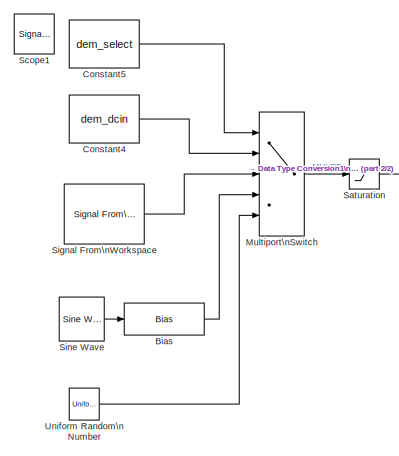
[diagram: root canvas - part 1/2, top left region]
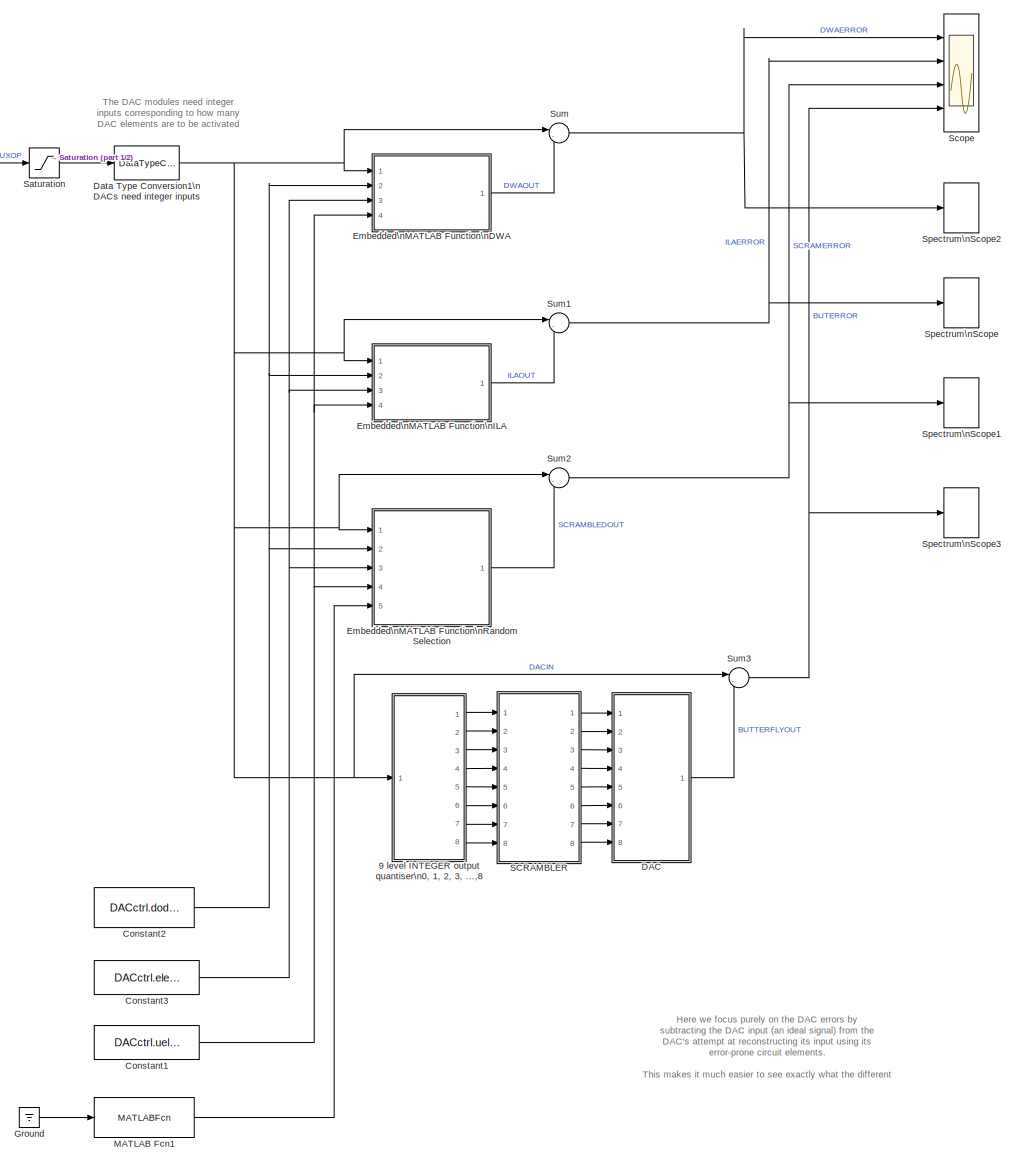
[diagram: root canvas - part 2/2, most of the canvas]
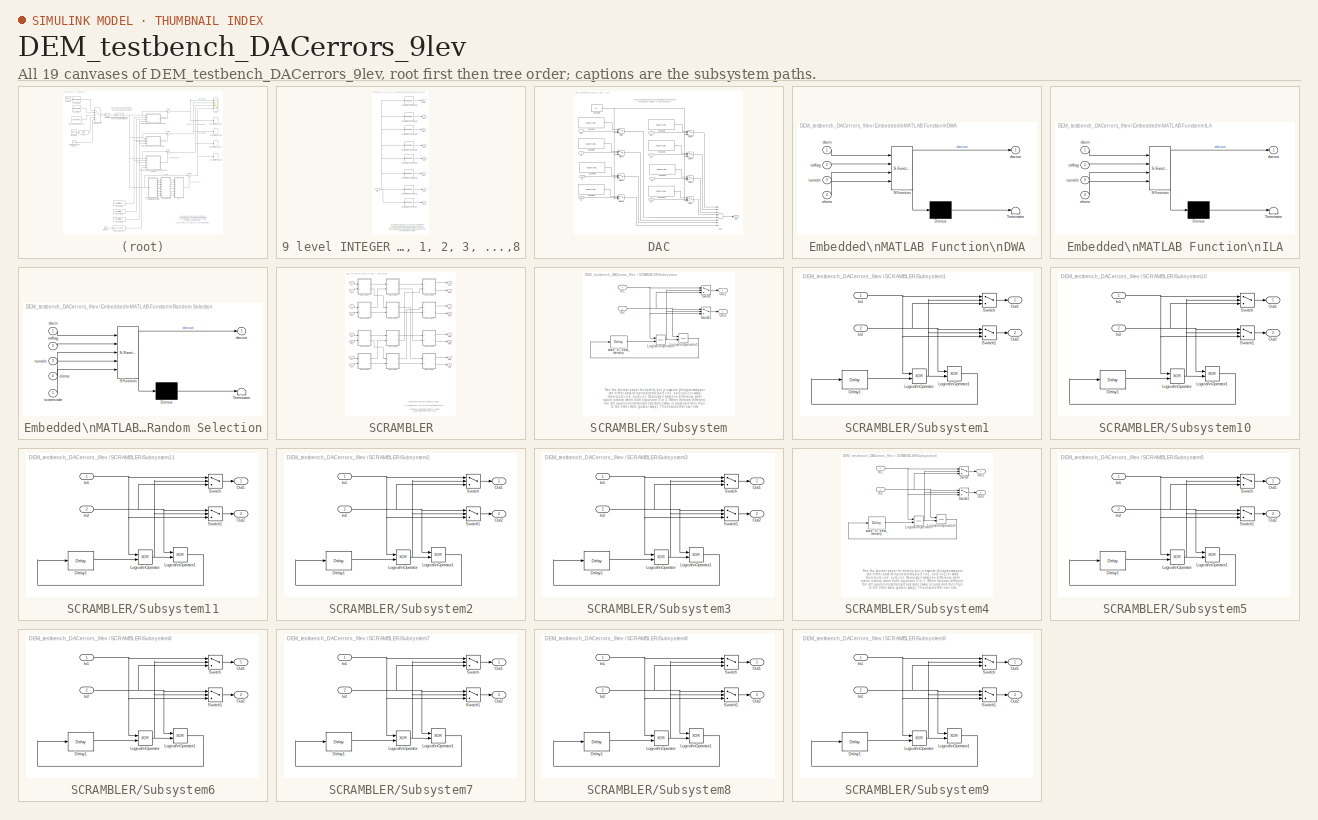
[diagram: thumbnail index - all 19 canvases of the model, root first then tree order]
MODEL DEM_testbench_DACerrors_9lev
KIND model
BLOCK [SubSystem] 9 level INTEGER  output quantiser\n0, 1, 2, 3, ...,8
  FunctionWithSeparateData = off
  MaskHideContents = off
  MinAlgLoopOccurrences = off
  Opaque = off
  Ports = [1, 8]
  PropExecContextOutsideSubsystem = off
  RTWSystemCode = Auto
  RequestExecContextInheritance = off
  SID = 197
BLOCK [Reference] 9 level INTEGER  output quantiser\n0, 1, 2, 3, ...,8/Compare\nTo Constant  REF=simulink/Logic and Bit\nOperations/Compare\nTo Constant
  FunctionWithSeparateData = off
  LogicOutDataTypeMode = uint8
  Ports = [1, 1]
  RTWMemSecDataConstants = Inherit from model
  RTWMemSecDataInternal = Inherit from model
  RTWMemSecDataParameters = Inherit from model
  RTWMemSecFuncExecute = Inherit from model
  RTWMemSecFuncInitTerm = Inherit from model
  SID = 199
  ShowPortLabels = FromPortIcon
  SourceBlock = simulink/Logic and Bit\nOperations/Compare\nTo Constant
  SourceType = Compare To Constant
  SystemSampleTime = -1
  ZeroCross = on
  const = 1
  relop = >=
BLOCK [Reference] 9 level INTEGER  output quantiser\n0, 1, 2, 3, ...,8/Compare\nTo Constant1  REF=simulink/Logic and Bit\nOperations/Compare\nTo Constant
  FunctionWithSeparateData = off
  LogicOutDataTypeMode = uint8
  Ports = [1, 1]
  RTWMemSecDataConstants = Inherit from model
  RTWMemSecDataInternal = Inherit from model
  RTWMemSecDataParameters = Inherit from model
  RTWMemSecFuncExecute = Inherit from model
  RTWMemSecFuncInitTerm = Inherit from model
  SID = 200
  ShowPortLabels = FromPortIcon
  SourceBlock = simulink/Logic and Bit\nOperations/Compare\nTo Constant
  SourceType = Compare To Constant
  SystemSampleTime = -1
  ZeroCross = on
  const = 2
  relop = >=
BLOCK [Reference] 9 level INTEGER  output quantiser\n0, 1, 2, 3, ...,8/Compare\nTo Constant2  REF=simulink/Logic and Bit\nOperations/Compare\nTo Constant
  FunctionWithSeparateData = off
  LogicOutDataTypeMode = uint8
  Ports = [1, 1]
  RTWMemSecDataConstants = Inherit from model
  RTWMemSecDataInternal = Inherit from model
  RTWMemSecDataParameters = Inherit from model
  RTWMemSecFuncExecute = Inherit from model
  RTWMemSecFuncInitTerm = Inherit from model
  SID = 201
  ShowPortLabels = FromPortIcon
  SourceBlock = simulink/Logic and Bit\nOperations/Compare\nTo Constant
  SourceType = Compare To Constant
  SystemSampleTime = -1
  ZeroCross = on
  const = 3
  relop = >=
BLOCK [Reference] 9 level INTEGER  output quantiser\n0, 1, 2, 3, ...,8/Compare\nTo Constant3  REF=simulink/Logic and Bit\nOperations/Compare\nTo Constant
  FunctionWithSeparateData = off
  LogicOutDataTypeMode = uint8
  Ports = [1, 1]
  RTWMemSecDataConstants = Inherit from model
  RTWMemSecDataInternal = Inherit from model
  RTWMemSecDataParameters = Inherit from model
  RTWMemSecFuncExecute = Inherit from model
  RTWMemSecFuncInitTerm = Inherit from model
  SID = 293
  ShowPortLabels = FromPortIcon
  SourceBlock = simulink/Logic and Bit\nOperations/Compare\nTo Constant
  SourceType = Compare To Constant
  SystemSampleTime = -1
  ZeroCross = on
  const = 4
  relop = >=
BLOCK [Reference] 9 level INTEGER  output quantiser\n0, 1, 2, 3, ...,8/Compare\nTo Constant4  REF=simulink/Logic and Bit\nOperations/Compare\nTo Constant
  FunctionWithSeparateData = off
  LogicOutDataTypeMode = uint8
  Ports = [1, 1]
  RTWMemSecDataConstants = Inherit from model
  RTWMemSecDataInternal = Inherit from model
  RTWMemSecDataParameters = Inherit from model
  RTWMemSecFuncExecute = Inherit from model
  RTWMemSecFuncInitTerm = Inherit from model
  SID = 294
  ShowPortLabels = FromPortIcon
  SourceBlock = simulink/Logic and Bit\nOperations/Compare\nTo Constant
  SourceType = Compare To Constant
  SystemSampleTime = -1
  ZeroCross = on
  const = 5
  relop = >=
BLOCK [Reference] 9 level INTEGER  output quantiser\n0, 1, 2, 3, ...,8/Compare\nTo Constant5  REF=simulink/Logic and Bit\nOperations/Compare\nTo Constant
  FunctionWithSeparateData = off
  LogicOutDataTypeMode = uint8
  Ports = [1, 1]
  RTWMemSecDataConstants = Inherit from model
  RTWMemSecDataInternal = Inherit from model
  RTWMemSecDataParameters = Inherit from model
  RTWMemSecFuncExecute = Inherit from model
  RTWMemSecFuncInitTerm = Inherit from model
  SID = 295
  ShowPortLabels = FromPortIcon
  SourceBlock = simulink/Logic and Bit\nOperations/Compare\nTo Constant
  SourceType = Compare To Constant
  SystemSampleTime = -1
  ZeroCross = on
  const = 6
  relop = >=
BLOCK [Reference] 9 level INTEGER  output quantiser\n0, 1, 2, 3, ...,8/Compare\nTo Constant6  REF=simulink/Logic and Bit\nOperations/Compare\nTo Constant
  FunctionWithSeparateData = off
  LogicOutDataTypeMode = uint8
  Ports = [1, 1]
  RTWMemSecDataConstants = Inherit from model
  RTWMemSecDataInternal = Inherit from model
  RTWMemSecDataParameters = Inherit from model
  RTWMemSecFuncExecute = Inherit from model
  RTWMemSecFuncInitTerm = Inherit from model
  SID = 299
  ShowPortLabels = FromPortIcon
  SourceBlock = simulink/Logic and Bit\nOperations/Compare\nTo Constant
  SourceType = Compare To Constant
  SystemSampleTime = -1
  ZeroCross = on
  const = 7
  relop = >=
BLOCK [Reference] 9 level INTEGER  output quantiser\n0, 1, 2, 3, ...,8/Compare\nTo Constant7  REF=simulink/Logic and Bit\nOperations/Compare\nTo Constant
  FunctionWithSeparateData = off
  LogicOutDataTypeMode = uint8
  Ports = [1, 1]
  RTWMemSecDataConstants = Inherit from model
  RTWMemSecDataInternal = Inherit from model
  RTWMemSecDataParameters = Inherit from model
  RTWMemSecFuncExecute = Inherit from model
  RTWMemSecFuncInitTerm = Inherit from model
  SID = 300
  ShowPortLabels = FromPortIcon
  SourceBlock = simulink/Logic and Bit\nOperations/Compare\nTo Constant
  SourceType = Compare To Constant
  SystemSampleTime = -1
  ZeroCross = on
  const = 8
  relop = >=
BLOCK [Inport] 9 level INTEGER  output quantiser\n0, 1, 2, 3, ...,8/In1
  IconDisplay = Port number
  SID = 198
BLOCK [Outport] 9 level INTEGER  output quantiser\n0, 1, 2, 3, ...,8/Out1
  IconDisplay = Port number
  SID = 202
BLOCK [Outport] 9 level INTEGER  output quantiser\n0, 1, 2, 3, ...,8/Out2
  IconDisplay = Port number
  Port = 2
  SID = 203
BLOCK [Outport] 9 level INTEGER  output quantiser\n0, 1, 2, 3, ...,8/Out3
  IconDisplay = Port number
  Port = 3
  SID = 204
BLOCK [Outport] 9 level INTEGER  output quantiser\n0, 1, 2, 3, ...,8/Out4
  IconDisplay = Port number
  Port = 4
  SID = 296
BLOCK [Outport] 9 level INTEGER  output quantiser\n0, 1, 2, 3, ...,8/Out5
  IconDisplay = Port number
  Port = 5
  SID = 297
BLOCK [Outport] 9 level INTEGER  output quantiser\n0, 1, 2, 3, ...,8/Out6
  IconDisplay = Port number
  Port = 6
  SID = 298
BLOCK [Outport] 9 level INTEGER  output quantiser\n0, 1, 2, 3, ...,8/Out7
  IconDisplay = Port number
  Port = 7
  SID = 301
BLOCK [Outport] 9 level INTEGER  output quantiser\n0, 1, 2, 3, ...,8/Out8
  IconDisplay = Port number
  Port = 8
  SID = 302
BLOCK [Bias] Bias
  Bias = dem_sinamp/2
  SID = 104
  SaturateOnIntegerOverflow = off
BLOCK [Constant] Constant1
  SID = 90
  SampleTime = 1/Fs
  Value = DACctrl.uelement
BLOCK [Constant] Constant2
  SID = 74
  SampleTime = 1/Fs
  Value = DACctrl.dodem
BLOCK [Constant] Constant3
  SID = 75
  SampleTime = 1/Fs
  Value = DACctrl.elecount
BLOCK [Constant] Constant4
  SID = 93
  SampleTime = 1/Fs
  Value = dem_dcin
BLOCK [Constant] Constant5
  SID = 100
  SampleTime = 1/Fs
  Value = dem_select
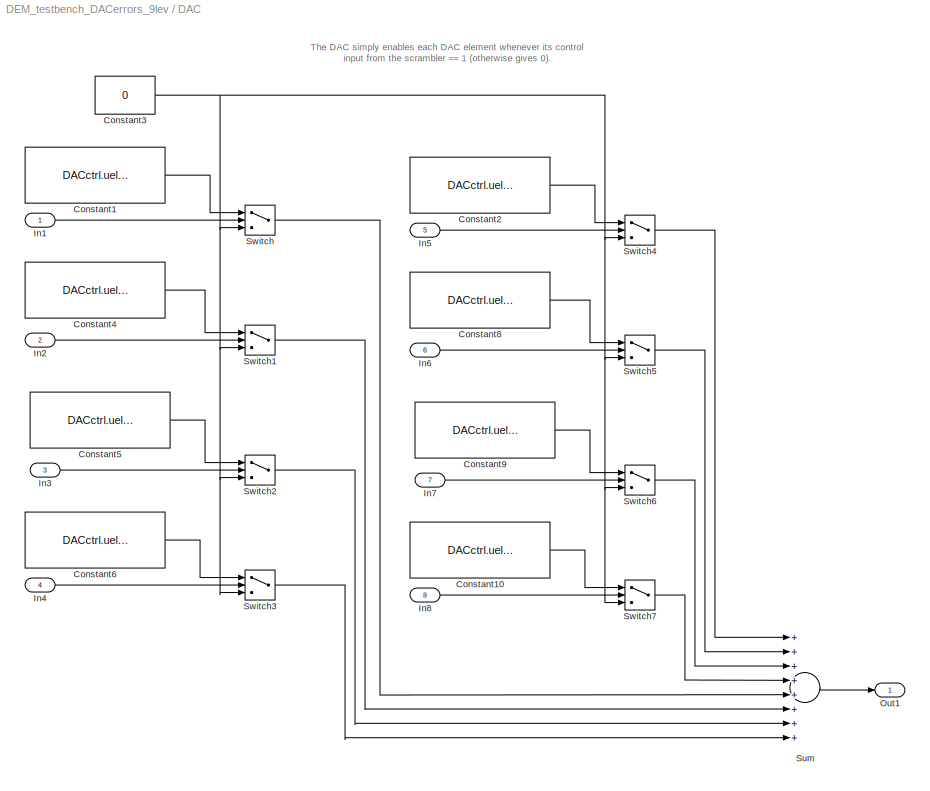
BLOCK [SubSystem] DAC
  FunctionWithSeparateData = off
  MaskHideContents = off
  MinAlgLoopOccurrences = off
  Opaque = off
  Ports = [8, 1]
  PropExecContextOutsideSubsystem = off
  RTWSystemCode = Auto
  RequestExecContextInheritance = off
  SID = 119
BLOCK [Constant] DAC/Constant1
  SID = 124
  SampleTime = 1/Fs
  Value = DACctrl.uelement(1)
BLOCK [Constant] DAC/Constant10
  SID = 192
  SampleTime = 1/Fs
  Value = DACctrl.uelement(8)
BLOCK [Constant] DAC/Constant2
  SID = 188
  SampleTime = 1/Fs
  Value = DACctrl.uelement(5)
BLOCK [Constant] DAC/Constant3
  SID = 125
  SampleTime = 1/Fs
  Value = 0
BLOCK [Constant] DAC/Constant4
  SID = 126
  SampleTime = 1/Fs
  Value = DACctrl.uelement(2)
BLOCK [Constant] DAC/Constant5
  SID = 127
  SampleTime = 1/Fs
  Value = DACctrl.uelement(3)
BLOCK [Constant] DAC/Constant6
  SID = 128
  SampleTime = 1/Fs
  Value = DACctrl.uelement(4)
BLOCK [Constant] DAC/Constant8
  SID = 190
  SampleTime = 1/Fs
  Value = DACctrl.uelement(6)
BLOCK [Constant] DAC/Constant9
  SID = 191
  SampleTime = 1/Fs
  Value = DACctrl.uelement(7)
BLOCK [Inport] DAC/In1
  IconDisplay = Port number
  SID = 120
BLOCK [Inport] DAC/In2
  IconDisplay = Port number
  Port = 2
  SID = 121
BLOCK [Inport] DAC/In3
  IconDisplay = Port number
  Port = 3
  SID = 122
BLOCK [Inport] DAC/In4
  IconDisplay = Port number
  Port = 4
  SID = 123
BLOCK [Inport] DAC/In5
  IconDisplay = Port number
  Port = 5
  SID = 184
BLOCK [Inport] DAC/In6
  IconDisplay = Port number
  Port = 6
  SID = 185
BLOCK [Inport] DAC/In7
  IconDisplay = Port number
  Port = 7
  SID = 186
BLOCK [Inport] DAC/In8
  IconDisplay = Port number
  Port = 8
  SID = 187
BLOCK [Outport] DAC/Out1
  IconDisplay = Port number
  SID = 134
BLOCK [Sum] DAC/Sum
  InputSameDT = off
  Inputs = ++++++++
  OutDataTypeStr = Inherit: Inherit via internal rule
  Ports = [8, 1]
  SID = 129
  SaturateOnIntegerOverflow = off
BLOCK [Switch] DAC/Switch
  Criteria = u2 > Threshold
  InputSameDT = off
  SID = 130
  SaturateOnIntegerOverflow = off
  Threshold = 0.15
BLOCK [Switch] DAC/Switch1
  Criteria = u2 > Threshold
  InputSameDT = off
  SID = 306
  SaturateOnIntegerOverflow = off
  Threshold = 0.15
BLOCK [Switch] DAC/Switch2
  Criteria = u2 > Threshold
  InputSameDT = off
  SID = 307
  SaturateOnIntegerOverflow = off
  Threshold = 0.15
BLOCK [Switch] DAC/Switch3
  Criteria = u2 > Threshold
  InputSameDT = off
  SID = 309
  SaturateOnIntegerOverflow = off
  Threshold = 0.15
BLOCK [Switch] DAC/Switch4
  Criteria = u2 > Threshold
  InputSameDT = off
  SID = 314
  SaturateOnIntegerOverflow = off
  Threshold = 0.15
BLOCK [Switch] DAC/Switch5
  Criteria = u2 > Threshold
  InputSameDT = off
  SID = 315
  SaturateOnIntegerOverflow = off
  Threshold = 0.15
BLOCK [Switch] DAC/Switch6
  Criteria = u2 > Threshold
  InputSameDT = off
  SID = 316
  SaturateOnIntegerOverflow = off
  Threshold = 0.15
BLOCK [Switch] DAC/Switch7
  Criteria = u2 > Threshold
  InputSameDT = off
  SID = 317
  SaturateOnIntegerOverflow = off
  Threshold = 0.15
BLOCK [DataTypeConversion] Data Type Conversion1\nDACs need integer inputs
  OutDataTypeStr = uint8
  RndMeth = Nearest
  SID = 102
  SaturateOnIntegerOverflow = off
BLOCK [SubSystem] Embedded\nMATLAB Function\nDWA
  ErrorFcn = Stateflow.Translate.translate
  FunctionWithSeparateData = off
  MaskHideContents = off
  MinAlgLoopOccurrences = off
  Opaque = off
  PermitHierarchicalResolution = ExplicitOnly
  Ports = [4, 1]
  PropExecContextOutsideSubsystem = off
  RTWSystemCode = Auto
  RequestExecContextInheritance = off
  SFBlockType = MATLAB Function
  SID = 78
  TreatAsAtomicUnit = on
BLOCK [Demux] Embedded\nMATLAB Function\nDWA/ Demux 
  Outputs = 1
  Ports = [1, 1]
  SID = 78::80
BLOCK [S-Function] Embedded\nMATLAB Function\nDWA/ SFunction 
  EnableBusSupport = off
  FunctionName = sf_sfun
  PortCounts = [4 2]
  Ports = [4, 2]
  SID = 78::79
  Tag = Stateflow S-Function DEM_testbench_DACerrors_9lev 2
BLOCK [Terminator] Embedded\nMATLAB Function\nDWA/ Terminator 
  SID = 78::81
BLOCK [Inport] Embedded\nMATLAB Function\nDWA/dacin
  IconDisplay = Port number
  SID = 78::78
BLOCK [Outport] Embedded\nMATLAB Function\nDWA/dacout
  IconDisplay = Port number
  SID = 78::85
BLOCK [Inport] Embedded\nMATLAB Function\nDWA/elems
  IconDisplay = Port number
  Port = 4
  SID = 78::84
BLOCK [Inport] Embedded\nMATLAB Function\nDWA/numele
  IconDisplay = Port number
  Port = 3
  SID = 78::83
BLOCK [Inport] Embedded\nMATLAB Function\nDWA/rotflag
  IconDisplay = Port number
  Port = 2
  SID = 78::82
BLOCK [SubSystem] Embedded\nMATLAB Function\nILA
  ErrorFcn = Stateflow.Translate.translate
  FunctionWithSeparateData = off
  MaskHideContents = off
  MinAlgLoopOccurrences = off
  Opaque = off
  PermitHierarchicalResolution = ExplicitOnly
  Ports = [4, 1]
  PropExecContextOutsideSubsystem = off
  RTWSystemCode = Auto
  RequestExecContextInheritance = off
  SFBlockType = MATLAB Function
  SID = 94
  TreatAsAtomicUnit = on
BLOCK [Demux] Embedded\nMATLAB Function\nILA/ Demux 
  Outputs = 1
  Ports = [1, 1]
  SID = 94::96
BLOCK [S-Function] Embedded\nMATLAB Function\nILA/ SFunction 
  EnableBusSupport = off
  FunctionName = sf_sfun
  PortCounts = [4 2]
  Ports = [4, 2]
  SID = 94::95
  Tag = Stateflow S-Function DEM_testbench_DACerrors_9lev 1
BLOCK [Terminator] Embedded\nMATLAB Function\nILA/ Terminator 
  SID = 94::97
BLOCK [Inport] Embedded\nMATLAB Function\nILA/dacin
  IconDisplay = Port number
  SID = 94::94
BLOCK [Outport] Embedded\nMATLAB Function\nILA/dacout
  IconDisplay = Port number
  SID = 94::101
BLOCK [Inport] Embedded\nMATLAB Function\nILA/elems
  IconDisplay = Port number
  Port = 4
  SID = 94::100
BLOCK [Inport] Embedded\nMATLAB Function\nILA/numele
  IconDisplay = Port number
  Port = 3
  SID = 94::99
BLOCK [Inport] Embedded\nMATLAB Function\nILA/rotflag
  IconDisplay = Port number
  Port = 2
  SID = 94::98
BLOCK [SubSystem] Embedded\nMATLAB Function\nRandom Selection
  ErrorFcn = Stateflow.Translate.translate
  FunctionWithSeparateData = off
  MaskHideContents = off
  MinAlgLoopOccurrences = off
  Opaque = off
  PermitHierarchicalResolution = ExplicitOnly
  Ports = [5, 1]
  PropExecContextOutsideSubsystem = off
  RTWSystemCode = Auto
  RequestExecContextInheritance = off
  SFBlockType = MATLAB Function
  SID = 106
  TreatAsAtomicUnit = on
BLOCK [Demux] Embedded\nMATLAB Function\nRandom Selection/ Demux 
  Outputs = 1
  Ports = [1, 1]
  SID = 106::108
BLOCK [S-Function] Embedded\nMATLAB Function\nRandom Selection/ SFunction 
  EnableBusSupport = off
  FunctionName = sf_sfun
  PortCounts = [5 2]
  Ports = [5, 2]
  SID = 106::107
  Tag = Stateflow S-Function DEM_testbench_DACerrors_9lev 3
BLOCK [Terminator] Embedded\nMATLAB Function\nRandom Selection/ Terminator 
  SID = 106::109
BLOCK [Inport] Embedded\nMATLAB Function\nRandom Selection/dacin
  IconDisplay = Port number
  SID = 106::106
BLOCK [Outport] Embedded\nMATLAB Function\nRandom Selection/dacout
  IconDisplay = Port number
  SID = 106::114
BLOCK [Inport] Embedded\nMATLAB Function\nRandom Selection/elems
  IconDisplay = Port number
  Port = 4
  SID = 106::112
BLOCK [Inport] Embedded\nMATLAB Function\nRandom Selection/numele
  IconDisplay = Port number
  Port = 3
  SID = 106::111
BLOCK [Inport] Embedded\nMATLAB Function\nRandom Selection/rotflag
  IconDisplay = Port number
  Port = 2
  SID = 106::110
BLOCK [Inport] Embedded\nMATLAB Function\nRandom Selection/scramcode
  IconDisplay = Port number
  Port = 5
  SID = 106::113
BLOCK [Ground] Ground
  SID = 116
BLOCK [MATLABFcn] MATLAB Fcn1
  MATLABFcn = randperm(DACctrl.elecount)
  Ports = [1, 1]
  SID = 114
  SampleTime = 1/Fs
BLOCK [MultiPortSwitch] Multiport\nSwitch
  InputSameDT = off
  Inputs = 4
  Ports = [5, 1]
  SID = 99
  SaturateOnIntegerOverflow = off
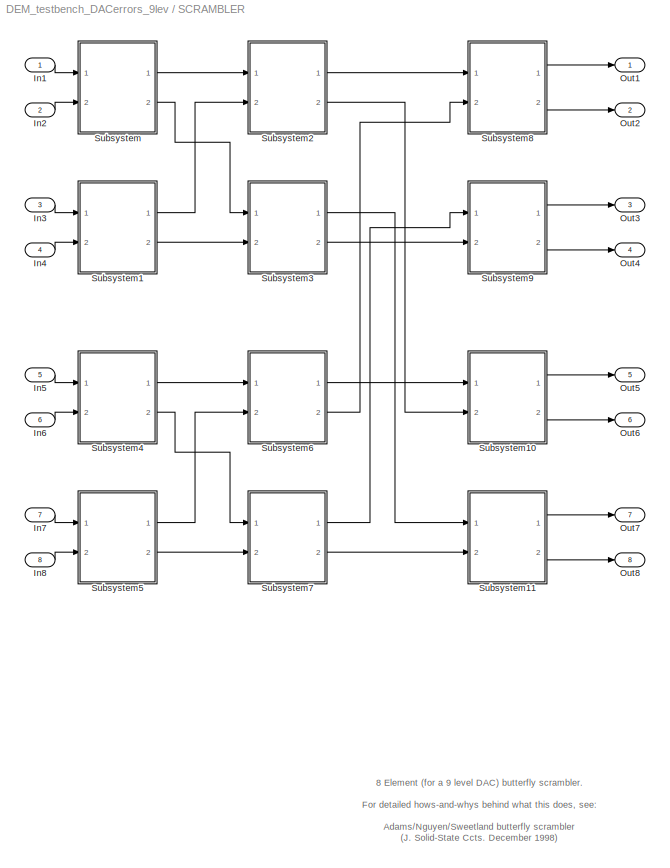
BLOCK [SubSystem] SCRAMBLER
  FunctionWithSeparateData = off
  MaskHideContents = off
  MinAlgLoopOccurrences = off
  Opaque = off
  Ports = [8, 8]
  PropExecContextOutsideSubsystem = off
  RTWSystemCode = Auto
  RequestExecContextInheritance = off
  SID = 135
BLOCK [Inport] SCRAMBLER/In1
  IconDisplay = Port number
  SID = 136
BLOCK [Inport] SCRAMBLER/In2
  IconDisplay = Port number
  Port = 2
  SID = 137
BLOCK [Inport] SCRAMBLER/In3
  IconDisplay = Port number
  Port = 3
  SID = 138
BLOCK [Inport] SCRAMBLER/In4
  IconDisplay = Port number
  Port = 4
  SID = 139
BLOCK [Inport] SCRAMBLER/In5
  IconDisplay = Port number
  Port = 5
  SID = 205
BLOCK [Inport] SCRAMBLER/In6
  IconDisplay = Port number
  Port = 6
  SID = 206
BLOCK [Inport] SCRAMBLER/In7
  IconDisplay = Port number
  Port = 7
  SID = 207
BLOCK [Inport] SCRAMBLER/In8
  IconDisplay = Port number
  Port = 8
  SID = 208
BLOCK [Outport] SCRAMBLER/Out1
  IconDisplay = Port number
  SID = 180
BLOCK [Outport] SCRAMBLER/Out2
  IconDisplay = Port number
  Port = 2
  SID = 181
BLOCK [Outport] SCRAMBLER/Out3
  IconDisplay = Port number
  Port = 3
  SID = 182
BLOCK [Outport] SCRAMBLER/Out4
  IconDisplay = Port number
  Port = 4
  SID = 183
BLOCK [Outport] SCRAMBLER/Out5
  IconDisplay = Port number
  Port = 5
  SID = 249
BLOCK [Outport] SCRAMBLER/Out6
  IconDisplay = Port number
  Port = 6
  SID = 250
BLOCK [Outport] SCRAMBLER/Out7
  IconDisplay = Port number
  Port = 7
  SID = 251
BLOCK [Outport] SCRAMBLER/Out8
  IconDisplay = Port number
  Port = 8
  SID = 252
BLOCK [SubSystem] SCRAMBLER/Subsystem
  FunctionWithSeparateData = off
  MaskHideContents = off
  MinAlgLoopOccurrences = off
  Opaque = off
  Ports = [2, 2]
  PropExecContextOutsideSubsystem = off
  RTWSystemCode = Auto
  RequestExecContextInheritance = off
  SID = 140
BLOCK [Inport] SCRAMBLER/Subsystem/In1
  IconDisplay = Port number
  SID = 141
BLOCK [Inport] SCRAMBLER/Subsystem/In2
  IconDisplay = Port number
  Port = 2
  SID = 142
BLOCK [Logic] SCRAMBLER/Subsystem/Logical\nOperator
  AllPortsSameDT = off
  Operator = XOR
  OutDataTypeStr = boolean
  Ports = [2, 1]
  SID = 143
BLOCK [Logic] SCRAMBLER/Subsystem/Logical\nOperator1
  AllPortsSameDT = off
  Operator = XOR
  OutDataTypeStr = boolean
  Ports = [2, 1]
  SID = 144
BLOCK [Outport] SCRAMBLER/Subsystem/Out1
  IconDisplay = Port number
  SID = 148
BLOCK [Outport] SCRAMBLER/Subsystem/Out2
  IconDisplay = Port number
  Port = 2
  SID = 149
BLOCK [Switch] SCRAMBLER/Subsystem/Switch
  InputSameDT = off
  SID = 145
  SaturateOnIntegerOverflow = off
  Threshold = 0.1
BLOCK [Switch] SCRAMBLER/Subsystem/Switch1
  InputSameDT = off
  SID = 146
  SaturateOnIntegerOverflow = off
  Threshold = 0.1
BLOCK [Reference] SCRAMBLER/Subsystem/swap_or_pass_memory  REF=dspsigops/Delay
  InputProcessing = Inherited (this choice will be removed - see release notes)
  Ports = [1, 1]
  SID = 147
  SourceBlock = dspsigops/Delay
  SourceType = Delay
  UserData = DataTag0
  UserDataPersistent = on
  delay = 1
  dif_ic_for_ch = off
  dif_ic_for_dly = off
  dly_unit = Samples
  ic = 1
  ic_detail = off
  reset_popup = None
BLOCK [SubSystem] SCRAMBLER/Subsystem1
  FunctionWithSeparateData = off
  MaskHideContents = off
  MinAlgLoopOccurrences = off
  Opaque = off
  Ports = [2, 2]
  PropExecContextOutsideSubsystem = off
  RTWSystemCode = Auto
  RequestExecContextInheritance = off
  SID = 150
BLOCK [Reference] SCRAMBLER/Subsystem1/Delay1  REF=dspsigops/Delay
  Ports = [1, 1]
  SID = 153
  SourceBlock = dspsigops/Delay
  SourceType = Delay
  delay = 1
  dif_ic_for_ch = off
  dif_ic_for_dly = off
  dly_unit = Samples
  ic = 0
  ic_detail = off
  reset_popup = None
BLOCK [Inport] SCRAMBLER/Subsystem1/In1
  IconDisplay = Port number
  SID = 151
BLOCK [Inport] SCRAMBLER/Subsystem1/In2
  IconDisplay = Port number
  Port = 2
  SID = 152
BLOCK [Logic] SCRAMBLER/Subsystem1/Logical\nOperator
  AllPortsSameDT = off
  Operator = XOR
  OutDataTypeStr = boolean
  Ports = [2, 1]
  SID = 154
BLOCK [Logic] SCRAMBLER/Subsystem1/Logical\nOperator1
  AllPortsSameDT = off
  Operator = XOR
  OutDataTypeStr = boolean
  Ports = [2, 1]
  SID = 155
BLOCK [Outport] SCRAMBLER/Subsystem1/Out1
  IconDisplay = Port number
  SID = 158
BLOCK [Outport] SCRAMBLER/Subsystem1/Out2
  IconDisplay = Port number
  Port = 2
  SID = 159
BLOCK [Switch] SCRAMBLER/Subsystem1/Switch
  InputSameDT = off
  SID = 156
  SaturateOnIntegerOverflow = off
  Threshold = 0.1
BLOCK [Switch] SCRAMBLER/Subsystem1/Switch1
  InputSameDT = off
  SID = 157
  SaturateOnIntegerOverflow = off
  Threshold = 0.1
BLOCK [SubSystem] SCRAMBLER/Subsystem10
  FunctionWithSeparateData = off
  MaskHideContents = off
  MinAlgLoopOccurrences = off
  Opaque = off
  Ports = [2, 2]
  PropExecContextOutsideSubsystem = off
  RTWSystemCode = Auto
  RequestExecContextInheritance = off
  SID = 273
BLOCK [Reference] SCRAMBLER/Subsystem10/Delay1  REF=dspsigops/Delay
  Ports = [1, 1]
  SID = 276
  SourceBlock = dspsigops/Delay
  SourceType = Delay
  delay = 1
  dif_ic_for_ch = off
  dif_ic_for_dly = off
  dly_unit = Samples
  ic = 0
  ic_detail = off
  reset_popup = None
BLOCK [Inport] SCRAMBLER/Subsystem10/In1
  IconDisplay = Port number
  SID = 274
BLOCK [Inport] SCRAMBLER/Subsystem10/In2
  IconDisplay = Port number
  Port = 2
  SID = 275
BLOCK [Logic] SCRAMBLER/Subsystem10/Logical\nOperator
  AllPortsSameDT = off
  Operator = XOR
  OutDataTypeStr = boolean
  Ports = [2, 1]
  SID = 277
BLOCK [Logic] SCRAMBLER/Subsystem10/Logical\nOperator1
  AllPortsSameDT = off
  Operator = XOR
  OutDataTypeStr = boolean
  Ports = [2, 1]
  SID = 278
BLOCK [Outport] SCRAMBLER/Subsystem10/Out1
  IconDisplay = Port number
  SID = 281
BLOCK [Outport] SCRAMBLER/Subsystem10/Out2
  IconDisplay = Port number
  Port = 2
  SID = 282
BLOCK [Switch] SCRAMBLER/Subsystem10/Switch
  InputSameDT = off
  SID = 279
  SaturateOnIntegerOverflow = off
  Threshold = 0.1
BLOCK [Switch] SCRAMBLER/Subsystem10/Switch1
  InputSameDT = off
  SID = 280
  SaturateOnIntegerOverflow = off
  Threshold = 0.1
BLOCK [SubSystem] SCRAMBLER/Subsystem11
  FunctionWithSeparateData = off
  MaskHideContents = off
  MinAlgLoopOccurrences = off
  Opaque = off
  Ports = [2, 2]
  PropExecContextOutsideSubsystem = off
  RTWSystemCode = Auto
  RequestExecContextInheritance = off
  SID = 283
BLOCK [Reference] SCRAMBLER/Subsystem11/Delay1  REF=dspsigops/Delay
  Ports = [1, 1]
  SID = 286
  SourceBlock = dspsigops/Delay
  SourceType = Delay
  delay = 1
  dif_ic_for_ch = off
  dif_ic_for_dly = off
  dly_unit = Samples
  ic = 0
  ic_detail = off
  reset_popup = None
BLOCK [Inport] SCRAMBLER/Subsystem11/In1
  IconDisplay = Port number
  SID = 284
BLOCK [Inport] SCRAMBLER/Subsystem11/In2
  IconDisplay = Port number
  Port = 2
  SID = 285
BLOCK [Logic] SCRAMBLER/Subsystem11/Logical\nOperator
  AllPortsSameDT = off
  Operator = XOR
  OutDataTypeStr = boolean
  Ports = [2, 1]
  SID = 287
BLOCK [Logic] SCRAMBLER/Subsystem11/Logical\nOperator1
  AllPortsSameDT = off
  Operator = XOR
  OutDataTypeStr = boolean
  Ports = [2, 1]
  SID = 288
BLOCK [Outport] SCRAMBLER/Subsystem11/Out1
  IconDisplay = Port number
  SID = 291
BLOCK [Outport] SCRAMBLER/Subsystem11/Out2
  IconDisplay = Port number
  Port = 2
  SID = 292
BLOCK [Switch] SCRAMBLER/Subsystem11/Switch
  InputSameDT = off
  SID = 289
  SaturateOnIntegerOverflow = off
  Threshold = 0.1
BLOCK [Switch] SCRAMBLER/Subsystem11/Switch1
  InputSameDT = off
  SID = 290
  SaturateOnIntegerOverflow = off
  Threshold = 0.1
BLOCK [SubSystem] SCRAMBLER/Subsystem2
  FunctionWithSeparateData = off
  MaskHideContents = off
  MinAlgLoopOccurrences = off
  Opaque = off
  Ports = [2, 2]
  PropExecContextOutsideSubsystem = off
  RTWSystemCode = Auto
  RequestExecContextInheritance = off
  SID = 160
BLOCK [Reference] SCRAMBLER/Subsystem2/Delay1  REF=dspsigops/Delay
  Ports = [1, 1]
  SID = 163
  SourceBlock = dspsigops/Delay
  SourceType = Delay
  delay = 1
  dif_ic_for_ch = off
  dif_ic_for_dly = off
  dly_unit = Samples
  ic = 0
  ic_detail = off
  reset_popup = None
BLOCK [Inport] SCRAMBLER/Subsystem2/In1
  IconDisplay = Port number
  SID = 161
BLOCK [Inport] SCRAMBLER/Subsystem2/In2
  IconDisplay = Port number
  Port = 2
  SID = 162
BLOCK [Logic] SCRAMBLER/Subsystem2/Logical\nOperator
  AllPortsSameDT = off
  Operator = XOR
  OutDataTypeStr = boolean
  Ports = [2, 1]
  SID = 164
BLOCK [Logic] SCRAMBLER/Subsystem2/Logical\nOperator1
  AllPortsSameDT = off
  Operator = XOR
  OutDataTypeStr = boolean
  Ports = [2, 1]
  SID = 165
BLOCK [Outport] SCRAMBLER/Subsystem2/Out1
  IconDisplay = Port number
  SID = 168
BLOCK [Outport] SCRAMBLER/Subsystem2/Out2
  IconDisplay = Port number
  Port = 2
  SID = 169
BLOCK [Switch] SCRAMBLER/Subsystem2/Switch
  InputSameDT = off
  SID = 166
  SaturateOnIntegerOverflow = off
  Threshold = 0.1
BLOCK [Switch] SCRAMBLER/Subsystem2/Switch1
  InputSameDT = off
  SID = 167
  SaturateOnIntegerOverflow = off
  Threshold = 0.1
BLOCK [SubSystem] SCRAMBLER/Subsystem3
  FunctionWithSeparateData = off
  MaskHideContents = off
  MinAlgLoopOccurrences = off
  Opaque = off
  Ports = [2, 2]
  PropExecContextOutsideSubsystem = off
  RTWSystemCode = Auto
  RequestExecContextInheritance = off
  SID = 170
BLOCK [Reference] SCRAMBLER/Subsystem3/Delay1  REF=dspsigops/Delay
  Ports = [1, 1]
  SID = 173
  SourceBlock = dspsigops/Delay
  SourceType = Delay
  delay = 1
  dif_ic_for_ch = off
  dif_ic_for_dly = off
  dly_unit = Samples
  ic = 0
  ic_detail = off
  reset_popup = None
BLOCK [Inport] SCRAMBLER/Subsystem3/In1
  IconDisplay = Port number
  SID = 171
BLOCK [Inport] SCRAMBLER/Subsystem3/In2
  IconDisplay = Port number
  Port = 2
  SID = 172
BLOCK [Logic] SCRAMBLER/Subsystem3/Logical\nOperator
  AllPortsSameDT = off
  Operator = XOR
  OutDataTypeStr = boolean
  Ports = [2, 1]
  SID = 174
BLOCK [Logic] SCRAMBLER/Subsystem3/Logical\nOperator1
  AllPortsSameDT = off
  Operator = XOR
  OutDataTypeStr = boolean
  Ports = [2, 1]
  SID = 175
BLOCK [Outport] SCRAMBLER/Subsystem3/Out1
  IconDisplay = Port number
  SID = 178
BLOCK [Outport] SCRAMBLER/Subsystem3/Out2
  IconDisplay = Port number
  Port = 2
  SID = 179
BLOCK [Switch] SCRAMBLER/Subsystem3/Switch
  InputSameDT = off
  SID = 176
  SaturateOnIntegerOverflow = off
  Threshold = 0.1
BLOCK [Switch] SCRAMBLER/Subsystem3/Switch1
  InputSameDT = off
  SID = 177
  SaturateOnIntegerOverflow = off
  Threshold = 0.1
BLOCK [SubSystem] SCRAMBLER/Subsystem4
  FunctionWithSeparateData = off
  MaskHideContents = off
  MinAlgLoopOccurrences = off
  Opaque = off
  Ports = [2, 2]
  PropExecContextOutsideSubsystem = off
  RTWSystemCode = Auto
  RequestExecContextInheritance = off
  SID = 209
BLOCK [Inport] SCRAMBLER/Subsystem4/In1
  IconDisplay = Port number
  SID = 210
BLOCK [Inport] SCRAMBLER/Subsystem4/In2
  IconDisplay = Port number
  Port = 2
  SID = 211
BLOCK [Logic] SCRAMBLER/Subsystem4/Logical\nOperator
  AllPortsSameDT = off
  Operator = XOR
  OutDataTypeStr = boolean
  Ports = [2, 1]
  SID = 212
BLOCK [Logic] SCRAMBLER/Subsystem4/Logical\nOperator1
  AllPortsSameDT = off
  Operator = XOR
  OutDataTypeStr = boolean
  Ports = [2, 1]
  SID = 213
BLOCK [Outport] SCRAMBLER/Subsystem4/Out1
  IconDisplay = Port number
  SID = 217
BLOCK [Outport] SCRAMBLER/Subsystem4/Out2
  IconDisplay = Port number
  Port = 2
  SID = 218
BLOCK [Switch] SCRAMBLER/Subsystem4/Switch
  InputSameDT = off
  SID = 214
  SaturateOnIntegerOverflow = off
  Threshold = 0.1
BLOCK [Switch] SCRAMBLER/Subsystem4/Switch1
  InputSameDT = off
  SID = 215
  SaturateOnIntegerOverflow = off
  Threshold = 0.1
BLOCK [Reference] SCRAMBLER/Subsystem4/swap_or_pass_memory  REF=dspsigops/Delay
  Ports = [1, 1]
  SID = 216
  SourceBlock = dspsigops/Delay
  SourceType = Delay
  delay = 1
  dif_ic_for_ch = off
  dif_ic_for_dly = off
  dly_unit = Samples
  ic = 0
  ic_detail = off
  reset_popup = None
BLOCK [SubSystem] SCRAMBLER/Subsystem5
  FunctionWithSeparateData = off
  MaskHideContents = off
  MinAlgLoopOccurrences = off
  Opaque = off
  Ports = [2, 2]
  PropExecContextOutsideSubsystem = off
  RTWSystemCode = Auto
  RequestExecContextInheritance = off
  SID = 219
BLOCK [Reference] SCRAMBLER/Subsystem5/Delay1  REF=dspsigops/Delay
  Ports = [1, 1]
  SID = 222
  SourceBlock = dspsigops/Delay
  SourceType = Delay
  delay = 1
  dif_ic_for_ch = off
  dif_ic_for_dly = off
  dly_unit = Samples
  ic = 0
  ic_detail = off
  reset_popup = None
BLOCK [Inport] SCRAMBLER/Subsystem5/In1
  IconDisplay = Port number
  SID = 220
BLOCK [Inport] SCRAMBLER/Subsystem5/In2
  IconDisplay = Port number
  Port = 2
  SID = 221
BLOCK [Logic] SCRAMBLER/Subsystem5/Logical\nOperator
  AllPortsSameDT = off
  Operator = XOR
  OutDataTypeStr = boolean
  Ports = [2, 1]
  SID = 223
BLOCK [Logic] SCRAMBLER/Subsystem5/Logical\nOperator1
  AllPortsSameDT = off
  Operator = XOR
  OutDataTypeStr = boolean
  Ports = [2, 1]
  SID = 224
BLOCK [Outport] SCRAMBLER/Subsystem5/Out1
  IconDisplay = Port number
  SID = 227
BLOCK [Outport] SCRAMBLER/Subsystem5/Out2
  IconDisplay = Port number
  Port = 2
  SID = 228
BLOCK [Switch] SCRAMBLER/Subsystem5/Switch
  InputSameDT = off
  SID = 225
  SaturateOnIntegerOverflow = off
  Threshold = 0.1
BLOCK [Switch] SCRAMBLER/Subsystem5/Switch1
  InputSameDT = off
  SID = 226
  SaturateOnIntegerOverflow = off
  Threshold = 0.1
BLOCK [SubSystem] SCRAMBLER/Subsystem6
  FunctionWithSeparateData = off
  MaskHideContents = off
  MinAlgLoopOccurrences = off
  Opaque = off
  Ports = [2, 2]
  PropExecContextOutsideSubsystem = off
  RTWSystemCode = Auto
  RequestExecContextInheritance = off
  SID = 229
BLOCK [Reference] SCRAMBLER/Subsystem6/Delay1  REF=dspsigops/Delay
  Ports = [1, 1]
  SID = 232
  SourceBlock = dspsigops/Delay
  SourceType = Delay
  delay = 1
  dif_ic_for_ch = off
  dif_ic_for_dly = off
  dly_unit = Samples
  ic = 0
  ic_detail = off
  reset_popup = None
BLOCK [Inport] SCRAMBLER/Subsystem6/In1
  IconDisplay = Port number
  SID = 230
BLOCK [Inport] SCRAMBLER/Subsystem6/In2
  IconDisplay = Port number
  Port = 2
  SID = 231
BLOCK [Logic] SCRAMBLER/Subsystem6/Logical\nOperator
  AllPortsSameDT = off
  Operator = XOR
  OutDataTypeStr = boolean
  Ports = [2, 1]
  SID = 233
BLOCK [Logic] SCRAMBLER/Subsystem6/Logical\nOperator1
  AllPortsSameDT = off
  Operator = XOR
  OutDataTypeStr = boolean
  Ports = [2, 1]
  SID = 234
BLOCK [Outport] SCRAMBLER/Subsystem6/Out1
  IconDisplay = Port number
  SID = 237
BLOCK [Outport] SCRAMBLER/Subsystem6/Out2
  IconDisplay = Port number
  Port = 2
  SID = 238
BLOCK [Switch] SCRAMBLER/Subsystem6/Switch
  InputSameDT = off
  SID = 235
  SaturateOnIntegerOverflow = off
  Threshold = 0.1
BLOCK [Switch] SCRAMBLER/Subsystem6/Switch1
  InputSameDT = off
  SID = 236
  SaturateOnIntegerOverflow = off
  Threshold = 0.1
BLOCK [SubSystem] SCRAMBLER/Subsystem7
  FunctionWithSeparateData = off
  MaskHideContents = off
  MinAlgLoopOccurrences = off
  Opaque = off
  Ports = [2, 2]
  PropExecContextOutsideSubsystem = off
  RTWSystemCode = Auto
  RequestExecContextInheritance = off
  SID = 239
BLOCK [Reference] SCRAMBLER/Subsystem7/Delay1  REF=dspsigops/Delay
  Ports = [1, 1]
  SID = 242
  SourceBlock = dspsigops/Delay
  SourceType = Delay
  delay = 1
  dif_ic_for_ch = off
  dif_ic_for_dly = off
  dly_unit = Samples
  ic = 0
  ic_detail = off
  reset_popup = None
BLOCK [Inport] SCRAMBLER/Subsystem7/In1
  IconDisplay = Port number
  SID = 240
BLOCK [Inport] SCRAMBLER/Subsystem7/In2
  IconDisplay = Port number
  Port = 2
  SID = 241
BLOCK [Logic] SCRAMBLER/Subsystem7/Logical\nOperator
  AllPortsSameDT = off
  Operator = XOR
  OutDataTypeStr = boolean
  Ports = [2, 1]
  SID = 243
BLOCK [Logic] SCRAMBLER/Subsystem7/Logical\nOperator1
  AllPortsSameDT = off
  Operator = XOR
  OutDataTypeStr = boolean
  Ports = [2, 1]
  SID = 244
BLOCK [Outport] SCRAMBLER/Subsystem7/Out1
  IconDisplay = Port number
  SID = 247
BLOCK [Outport] SCRAMBLER/Subsystem7/Out2
  IconDisplay = Port number
  Port = 2
  SID = 248
BLOCK [Switch] SCRAMBLER/Subsystem7/Switch
  InputSameDT = off
  SID = 245
  SaturateOnIntegerOverflow = off
  Threshold = 0.1
BLOCK [Switch] SCRAMBLER/Subsystem7/Switch1
  InputSameDT = off
  SID = 246
  SaturateOnIntegerOverflow = off
  Threshold = 0.1
BLOCK [SubSystem] SCRAMBLER/Subsystem8
  FunctionWithSeparateData = off
  MaskHideContents = off
  MinAlgLoopOccurrences = off
  Opaque = off
  Ports = [2, 2]
  PropExecContextOutsideSubsystem = off
  RTWSystemCode = Auto
  RequestExecContextInheritance = off
  SID = 253
BLOCK [Reference] SCRAMBLER/Subsystem8/Delay1  REF=dspsigops/Delay
  Ports = [1, 1]
  SID = 256
  SourceBlock = dspsigops/Delay
  SourceType = Delay
  delay = 1
  dif_ic_for_ch = off
  dif_ic_for_dly = off
  dly_unit = Samples
  ic = 0
  ic_detail = off
  reset_popup = None
BLOCK [Inport] SCRAMBLER/Subsystem8/In1
  IconDisplay = Port number
  SID = 254
BLOCK [Inport] SCRAMBLER/Subsystem8/In2
  IconDisplay = Port number
  Port = 2
  SID = 255
BLOCK [Logic] SCRAMBLER/Subsystem8/Logical\nOperator
  AllPortsSameDT = off
  Operator = XOR
  OutDataTypeStr = boolean
  Ports = [2, 1]
  SID = 257
BLOCK [Logic] SCRAMBLER/Subsystem8/Logical\nOperator1
  AllPortsSameDT = off
  Operator = XOR
  OutDataTypeStr = boolean
  Ports = [2, 1]
  SID = 258
BLOCK [Outport] SCRAMBLER/Subsystem8/Out1
  IconDisplay = Port number
  SID = 261
BLOCK [Outport] SCRAMBLER/Subsystem8/Out2
  IconDisplay = Port number
  Port = 2
  SID = 262
BLOCK [Switch] SCRAMBLER/Subsystem8/Switch
  InputSameDT = off
  SID = 259
  SaturateOnIntegerOverflow = off
  Threshold = 0.1
BLOCK [Switch] SCRAMBLER/Subsystem8/Switch1
  InputSameDT = off
  SID = 260
  SaturateOnIntegerOverflow = off
  Threshold = 0.1
BLOCK [SubSystem] SCRAMBLER/Subsystem9
  FunctionWithSeparateData = off
  MaskHideContents = off
  MinAlgLoopOccurrences = off
  Opaque = off
  Ports = [2, 2]
  PropExecContextOutsideSubsystem = off
  RTWSystemCode = Auto
  RequestExecContextInheritance = off
  SID = 263
BLOCK [Reference] SCRAMBLER/Subsystem9/Delay1  REF=dspsigops/Delay
  Ports = [1, 1]
  SID = 266
  SourceBlock = dspsigops/Delay
  SourceType = Delay
  delay = 1
  dif_ic_for_ch = off
  dif_ic_for_dly = off
  dly_unit = Samples
  ic = 0
  ic_detail = off
  reset_popup = None
BLOCK [Inport] SCRAMBLER/Subsystem9/In1
  IconDisplay = Port number
  SID = 264
BLOCK [Inport] SCRAMBLER/Subsystem9/In2
  IconDisplay = Port number
  Port = 2
  SID = 265
BLOCK [Logic] SCRAMBLER/Subsystem9/Logical\nOperator
  AllPortsSameDT = off
  Operator = XOR
  OutDataTypeStr = boolean
  Ports = [2, 1]
  SID = 267
BLOCK [Logic] SCRAMBLER/Subsystem9/Logical\nOperator1
  AllPortsSameDT = off
  Operator = XOR
  OutDataTypeStr = boolean
  Ports = [2, 1]
  SID = 268
BLOCK [Outport] SCRAMBLER/Subsystem9/Out1
  IconDisplay = Port number
  SID = 271
BLOCK [Outport] SCRAMBLER/Subsystem9/Out2
  IconDisplay = Port number
  Port = 2
  SID = 272
BLOCK [Switch] SCRAMBLER/Subsystem9/Switch
  InputSameDT = off
  SID = 269
  SaturateOnIntegerOverflow = off
  Threshold = 0.1
BLOCK [Switch] SCRAMBLER/Subsystem9/Switch1
  InputSameDT = off
  SID = 270
  SaturateOnIntegerOverflow = off
  Threshold = 0.1
BLOCK [Saturate] Saturation
  InputPortMap = u0
  LowerLimit = 0
  Ports = [1, 1]
  SID = 103
  UpperLimit = DACctrl.elecount
BLOCK [Scope] Scope
  DataFormat = StructureWithTime
  Floating = off
  NumInputPorts = 4
  Ports = [4]
  SID = 80
  SampleTime = 0
  ShowLegends = off
  YMax = 0.04~5~5~5
  YMin = -0.04~-5~-5~-5
  ZoomMode = xonly
BLOCK [SignalViewerScope] Scope1
  IOType = viewer
  MaxDataPoints = 7500
  NumInputPorts = 2
  Ports = []
  RefreshTime = 0.035000
  SID = 117
  ShowDataMarkers = off
  ShowLegends = off
  YMax = 8~8
  YMin = 0~0
  ZoomMode = xonly
BLOCK [Reference] Signal From\nWorkspace  REF=dspsrcs4/Signal From\nWorkspace
  OutputAfterFinalValue = Cyclic repetition
  Ports = [0, 1]
  SID = 96
  SourceBlock = dspsrcs4/Signal From\nWorkspace
  SourceType = Signal From Workspace
  Ts = 1/Fs
  X = [1 1 1 2]
  ignoreOrWarnInputAndFrameLengths = off
  nsamps = 1
BLOCK [Reference] Sine Wave  REF=dspsrcs4/Sine Wave
  Amplitude = dem_sinamp/2
  CompMethod = Trigonometric fcn
  Frequency = dem_sinfreq
  LastOutDataTypeStr = double
  OutComplex = Real
  OutDataTypeStr = double
  Phase = 0
  Ports = [0, 1]
  ResetState = Restart at time zero
  SID = 98
  SampleMode = Discrete
  SampleTime = 1/Fs
  SamplesPerFrame = 1
  SourceBlock = dspsrcs4/Sine Wave
  SourceType = Sine Wave
  TableSize = Speed
  additionalParams = off
  allowOverrides = on
  dataType = double
  fracBitsMode = Best precision
  numFracBits = 15
  udDataType = sfix(16)
  wordLen = 16
BLOCK [SpectrumAnalyzer] Spectrum\nScope
  CloseFcn = scopeextensions.ScopeBlock.callback(gcbh, 'onBlockClose');
  CopyFcn = scopeextensions.ScopeBlock.callback(gcbh, 'onBlockCopy', gcbh);
  DeleteFcn = scopeextensions.ScopeBlock.callback(gcbh, 'onBlockDelete');
  NameChangeFcn = scopeextensions.ScopeBlock.callback(gcbh, 'onBlockRename');
  Ports = [1]
  PreDeleteFcn = scopeextensions.ScopeBlock.callback(gcbh, 'onBlockPreDelete');
  PreSaveFcn = scopeextensions.ScopeBlock.callback(gcbh, 'onModelSave');
  SID = 21
  UserData = DataTag1
  UserDataPersistent = on
BLOCK [SpectrumAnalyzer] Spectrum\nScope1
  CloseFcn = scopeextensions.ScopeBlock.callback(gcbh, 'onBlockClose');
  CopyFcn = scopeextensions.ScopeBlock.callback(gcbh, 'onBlockCopy', gcbh);
  DeleteFcn = scopeextensions.ScopeBlock.callback(gcbh, 'onBlockDelete');
  NameChangeFcn = scopeextensions.ScopeBlock.callback(gcbh, 'onBlockRename');
  Ports = [1]
  PreDeleteFcn = scopeextensions.ScopeBlock.callback(gcbh, 'onBlockPreDelete');
  PreSaveFcn = scopeextensions.ScopeBlock.callback(gcbh, 'onModelSave');
  SID = 318
  UserData = DataTag2
  UserDataPersistent = on
BLOCK [SpectrumAnalyzer] Spectrum\nScope2
  CloseFcn = scopeextensions.ScopeBlock.callback(gcbh, 'onBlockClose');
  CopyFcn = scopeextensions.ScopeBlock.callback(gcbh, 'onBlockCopy', gcbh);
  DeleteFcn = scopeextensions.ScopeBlock.callback(gcbh, 'onBlockDelete');
  NameChangeFcn = scopeextensions.ScopeBlock.callback(gcbh, 'onBlockRename');
  Ports = [1]
  PreDeleteFcn = scopeextensions.ScopeBlock.callback(gcbh, 'onBlockPreDelete');
  PreSaveFcn = scopeextensions.ScopeBlock.callback(gcbh, 'onModelSave');
  SID = 319
  UserData = DataTag3
  UserDataPersistent = on
BLOCK [SpectrumAnalyzer] Spectrum\nScope3
  CloseFcn = scopeextensions.ScopeBlock.callback(gcbh, 'onBlockClose');
  CopyFcn = scopeextensions.ScopeBlock.callback(gcbh, 'onBlockCopy', gcbh);
  DeleteFcn = scopeextensions.ScopeBlock.callback(gcbh, 'onBlockDelete');
  NameChangeFcn = scopeextensions.ScopeBlock.callback(gcbh, 'onBlockRename');
  Ports = [1]
  PreDeleteFcn = scopeextensions.ScopeBlock.callback(gcbh, 'onBlockPreDelete');
  PreSaveFcn = scopeextensions.ScopeBlock.callback(gcbh, 'onModelSave');
  SID = 320
  UserData = DataTag4
  UserDataPersistent = on
BLOCK [Sum] Sum
  IconShape = round
  InputSameDT = off
  Inputs = |-+
  OutDataTypeStr = Inherit: Inherit via internal rule
  Ports = [2, 1]
  SID = 108
  SaturateOnIntegerOverflow = off
BLOCK [Sum] Sum1
  IconShape = round
  InputSameDT = off
  Inputs = |-+
  OutDataTypeStr = Inherit: Inherit via internal rule
  Ports = [2, 1]
  SID = 109
  SaturateOnIntegerOverflow = off
BLOCK [Sum] Sum2
  IconShape = round
  InputSameDT = off
  Inputs = |-+
  OutDataTypeStr = Inherit: Inherit via internal rule
  Ports = [2, 1]
  SID = 110
  SaturateOnIntegerOverflow = off
BLOCK [Sum] Sum3
  IconShape = round
  InputSameDT = off
  Inputs = |-+
  OutDataTypeStr = Inherit: Inherit via internal rule
  Ports = [2, 1]
  SID = 303
  SaturateOnIntegerOverflow = off
BLOCK [UniformRandomNumber] Uniform Random\nNumber
  Maximum = DACctrl.elecount
  Minimum = 0
  SID = 105
  SampleTime = 1/Fs
ANNOTATION (root): Here we focus purely on the DAC errors by\nsubtracting the DAC input (an ideal signal) from the\nDAC's attempt at reconstructing its input using its\nerror-prone circuit elements.\n\nThis makes it much easier to see exactly what the different\nDEM algorithms are doing to the DAC output error\nspectrums resulting from the DAC unit element errors.
ANNOTATION (root): The DAC modules need integer\ninputs corresponding to how many\nDAC elements are to be activated
ANNOTATION 9 level INTEGER  output quantiser\n0, 1, 2, 3, ...,8: Quantiser done this way because the scrambler DEM\nrequires a thermometer code input corresponding to\nthe actual quantiser comparator outputs. We could use the\nstandard Simulink quantiser but then would need to convert\nto a thermometer code after it.
ANNOTATION DAC: The DAC simply enables each DAC element whenever its control\ninput from the scrambler == 1 (otherwise gives 0).
ANNOTATION SCRAMBLER: 8 Element (for a 9 level DAC) butterfly scrambler.\n\nFor detailed hows-and-whys behind what this does, see:\n\nAdams/Nguyen/Sweetland butterfly scrambler\n(J. Solid-State Ccts. December 1998)\n\nand (more detail)\n\nKwan/Adams/Libert\n(J. Solid-State Ccts. December 1996)
ANNOTATION SCRAMBLER/Subsystem: See the Journal paper for details, but in essence this basic swapper\ncan either pass its inputs directly (out1=in1, out2=in2) or swap\nthem (out1=in2, out2=in). Obviously it makes no difference what\naction is done when both inputs are 0 or 1. When they are different,\nthe cell applies its memorised last state (swap or pass) and then flips\nto the other state (pass or swap). This ensures that ove...<+178ch>
ANNOTATION SCRAMBLER/Subsystem4: See the Journal paper for details, but in essence this basic swapper\ncan either pass its inputs directly (out1=in1, out2=in2) or swap\nthem (out1=in2, out2=in). Obviously it makes no difference what\naction is done when both inputs are 0 or 1. When they are different,\nthe cell applies its memorised last state (swap or pass) and then flips\nto the other state (pass or swap). This ensures that ove...<+178ch>
LINE 9 level INTEGER  output quantiser\n0, 1, 2, 3, ...,8/Compare\nTo Constant1:1 -> 9 level INTEGER  output quantiser\n0, 1, 2, 3, ...,8/Out2:1
LINE 9 level INTEGER  output quantiser\n0, 1, 2, 3, ...,8/Compare\nTo Constant2:1 -> 9 level INTEGER  output quantiser\n0, 1, 2, 3, ...,8/Out3:1
LINE 9 level INTEGER  output quantiser\n0, 1, 2, 3, ...,8/Compare\nTo Constant3:1 -> 9 level INTEGER  output quantiser\n0, 1, 2, 3, ...,8/Out4:1
LINE 9 level INTEGER  output quantiser\n0, 1, 2, 3, ...,8/Compare\nTo Constant4:1 -> 9 level INTEGER  output quantiser\n0, 1, 2, 3, ...,8/Out5:1
LINE 9 level INTEGER  output quantiser\n0, 1, 2, 3, ...,8/Compare\nTo Constant5:1 -> 9 level INTEGER  output quantiser\n0, 1, 2, 3, ...,8/Out6:1
LINE 9 level INTEGER  output quantiser\n0, 1, 2, 3, ...,8/Compare\nTo Constant6:1 -> 9 level INTEGER  output quantiser\n0, 1, 2, 3, ...,8/Out7:1
LINE 9 level INTEGER  output quantiser\n0, 1, 2, 3, ...,8/Compare\nTo Constant7:1 -> 9 level INTEGER  output quantiser\n0, 1, 2, 3, ...,8/Out8:1
LINE 9 level INTEGER  output quantiser\n0, 1, 2, 3, ...,8/Compare\nTo Constant:1 -> 9 level INTEGER  output quantiser\n0, 1, 2, 3, ...,8/Out1:1
NET 9 level INTEGER  output quantiser\n0, 1, 2, 3, ...,8/In1:1 -> 9 level INTEGER  output quantiser\n0, 1, 2, 3, ...,8/Compare\nTo Constant1:1, 9 level INTEGER  output quantiser\n0, 1, 2, 3, ...,8/Compare\nTo Constant2:1, 9 level INTEGER  output quantiser\n0, 1, 2, 3, ...,8/Compare\nTo Constant3:1, 9 level INTEGER  output quantiser\n0, 1, 2, 3, ...,8/Compare\nTo Constant4:1, 9 level INTEGER  output quantiser\n0, 1, 2, 3, ...,8/Compare\nTo Constant5:1, 9 level INTEGER  output quantiser\n0, 1, 2, 3, ...,8/Compare\nTo Constant6:1, 9 level INTEGER  output quantiser\n0, 1, 2, 3, ...,8/Compare\nTo Constant7:1, 9 level INTEGER  output quantiser\n0, 1, 2, 3, ...,8/Compare\nTo Constant:1
LINE 9 level INTEGER  output quantiser\n0, 1, 2, 3, ...,8:1 -> SCRAMBLER:1
LINE 9 level INTEGER  output quantiser\n0, 1, 2, 3, ...,8:2 -> SCRAMBLER:2
LINE 9 level INTEGER  output quantiser\n0, 1, 2, 3, ...,8:3 -> SCRAMBLER:3
LINE 9 level INTEGER  output quantiser\n0, 1, 2, 3, ...,8:4 -> SCRAMBLER:4
LINE 9 level INTEGER  output quantiser\n0, 1, 2, 3, ...,8:5 -> SCRAMBLER:5
LINE 9 level INTEGER  output quantiser\n0, 1, 2, 3, ...,8:6 -> SCRAMBLER:6
LINE 9 level INTEGER  output quantiser\n0, 1, 2, 3, ...,8:7 -> SCRAMBLER:7
LINE 9 level INTEGER  output quantiser\n0, 1, 2, 3, ...,8:8 -> SCRAMBLER:8
LINE Bias:1 -> Multiport\nSwitch:4
NET Constant1:1 -> Embedded\nMATLAB Function\nDWA:4, Embedded\nMATLAB Function\nILA:4, Embedded\nMATLAB Function\nRandom Selection:4
NET Constant2:1 -> Embedded\nMATLAB Function\nDWA:2, Embedded\nMATLAB Function\nILA:2, Embedded\nMATLAB Function\nRandom Selection:2
NET Constant3:1 -> Embedded\nMATLAB Function\nDWA:3, Embedded\nMATLAB Function\nILA:3, Embedded\nMATLAB Function\nRandom Selection:3
LINE Constant4:1 -> Multiport\nSwitch:2
LINE Constant5:1 -> Multiport\nSwitch:1
LINE DAC/Constant10:1 -> DAC/Switch7:1
LINE DAC/Constant1:1 -> DAC/Switch:1
LINE DAC/Constant2:1 -> DAC/Switch4:1
NET DAC/Constant3:1 -> DAC/Switch1:3, DAC/Switch2:3, DAC/Switch3:3, DAC/Switch4:3, DAC/Switch5:3, DAC/Switch6:3, DAC/Switch7:3, DAC/Switch:3
LINE DAC/Constant4:1 -> DAC/Switch1:1
LINE DAC/Constant5:1 -> DAC/Switch2:1
LINE DAC/Constant6:1 -> DAC/Switch3:1
LINE DAC/Constant8:1 -> DAC/Switch5:1
LINE DAC/Constant9:1 -> DAC/Switch6:1
LINE DAC/In1:1 -> DAC/Switch:2
LINE DAC/In2:1 -> DAC/Switch1:2
LINE DAC/In3:1 -> DAC/Switch2:2
LINE DAC/In4:1 -> DAC/Switch3:2
LINE DAC/In5:1 -> DAC/Switch4:2
LINE DAC/In6:1 -> DAC/Switch5:2
LINE DAC/In7:1 -> DAC/Switch6:2
LINE DAC/In8:1 -> DAC/Switch7:2
LINE DAC/Sum:1 -> DAC/Out1:1
LINE DAC/Switch1:1 -> DAC/Sum:6
LINE DAC/Switch2:1 -> DAC/Sum:7
LINE DAC/Switch3:1 -> DAC/Sum:8
LINE DAC/Switch4:1 -> DAC/Sum:1
LINE DAC/Switch5:1 -> DAC/Sum:2
LINE DAC/Switch6:1 -> DAC/Sum:3
LINE DAC/Switch7:1 -> DAC/Sum:4
LINE DAC/Switch:1 -> DAC/Sum:5
LINE DAC:1 -> Sum3:2
NET Data Type Conversion1\nDACs need integer inputs:1 -> 9 level INTEGER  output quantiser\n0, 1, 2, 3, ...,8:1, Embedded\nMATLAB Function\nDWA:1, Embedded\nMATLAB Function\nILA:1, Embedded\nMATLAB Function\nRandom Selection:1, Sum1:1, Sum2:1, Sum3:1, Sum:1
LINE Embedded\nMATLAB Function\nDWA/ Demux :1 -> Embedded\nMATLAB Function\nDWA/ Terminator :1
LINE Embedded\nMATLAB Function\nDWA/ SFunction :1 -> Embedded\nMATLAB Function\nDWA/ Demux :1
LINE Embedded\nMATLAB Function\nDWA/ SFunction :2 -> Embedded\nMATLAB Function\nDWA/dacout:1
LINE Embedded\nMATLAB Function\nDWA/dacin:1 -> Embedded\nMATLAB Function\nDWA/ SFunction :1
LINE Embedded\nMATLAB Function\nDWA/elems:1 -> Embedded\nMATLAB Function\nDWA/ SFunction :4
LINE Embedded\nMATLAB Function\nDWA/numele:1 -> Embedded\nMATLAB Function\nDWA/ SFunction :3
LINE Embedded\nMATLAB Function\nDWA/rotflag:1 -> Embedded\nMATLAB Function\nDWA/ SFunction :2
LINE Embedded\nMATLAB Function\nDWA:1 -> Sum:2
LINE Embedded\nMATLAB Function\nILA/ Demux :1 -> Embedded\nMATLAB Function\nILA/ Terminator :1
LINE Embedded\nMATLAB Function\nILA/ SFunction :1 -> Embedded\nMATLAB Function\nILA/ Demux :1
LINE Embedded\nMATLAB Function\nILA/ SFunction :2 -> Embedded\nMATLAB Function\nILA/dacout:1
LINE Embedded\nMATLAB Function\nILA/dacin:1 -> Embedded\nMATLAB Function\nILA/ SFunction :1
LINE Embedded\nMATLAB Function\nILA/elems:1 -> Embedded\nMATLAB Function\nILA/ SFunction :4
LINE Embedded\nMATLAB Function\nILA/numele:1 -> Embedded\nMATLAB Function\nILA/ SFunction :3
LINE Embedded\nMATLAB Function\nILA/rotflag:1 -> Embedded\nMATLAB Function\nILA/ SFunction :2
LINE Embedded\nMATLAB Function\nILA:1 -> Sum1:2
LINE Embedded\nMATLAB Function\nRandom Selection/ Demux :1 -> Embedded\nMATLAB Function\nRandom Selection/ Terminator :1
LINE Embedded\nMATLAB Function\nRandom Selection/ SFunction :1 -> Embedded\nMATLAB Function\nRandom Selection/ Demux :1
LINE Embedded\nMATLAB Function\nRandom Selection/ SFunction :2 -> Embedded\nMATLAB Function\nRandom Selection/dacout:1
LINE Embedded\nMATLAB Function\nRandom Selection/dacin:1 -> Embedded\nMATLAB Function\nRandom Selection/ SFunction :1
LINE Embedded\nMATLAB Function\nRandom Selection/elems:1 -> Embedded\nMATLAB Function\nRandom Selection/ SFunction :4
LINE Embedded\nMATLAB Function\nRandom Selection/numele:1 -> Embedded\nMATLAB Function\nRandom Selection/ SFunction :3
LINE Embedded\nMATLAB Function\nRandom Selection/rotflag:1 -> Embedded\nMATLAB Function\nRandom Selection/ SFunction :2
LINE Embedded\nMATLAB Function\nRandom Selection/scramcode:1 -> Embedded\nMATLAB Function\nRandom Selection/ SFunction :5
LINE Embedded\nMATLAB Function\nRandom Selection:1 -> Sum2:2
LINE Ground:1 -> MATLAB Fcn1:1
LINE MATLAB Fcn1:1 -> Embedded\nMATLAB Function\nRandom Selection:5
LINE Multiport\nSwitch:1 -> Saturation:1
LINE SCRAMBLER/In1:1 -> SCRAMBLER/Subsystem:1
LINE SCRAMBLER/In2:1 -> SCRAMBLER/Subsystem:2
LINE SCRAMBLER/In3:1 -> SCRAMBLER/Subsystem1:1
LINE SCRAMBLER/In4:1 -> SCRAMBLER/Subsystem1:2
LINE SCRAMBLER/In5:1 -> SCRAMBLER/Subsystem4:1
LINE SCRAMBLER/In6:1 -> SCRAMBLER/Subsystem4:2
LINE SCRAMBLER/In7:1 -> SCRAMBLER/Subsystem5:1
LINE SCRAMBLER/In8:1 -> SCRAMBLER/Subsystem5:2
NET SCRAMBLER/Subsystem/In1:1 -> SCRAMBLER/Subsystem/Logical\nOperator:1, SCRAMBLER/Subsystem/Switch1:3, SCRAMBLER/Subsystem/Switch:1
NET SCRAMBLER/Subsystem/In2:1 -> SCRAMBLER/Subsystem/Logical\nOperator1:1, SCRAMBLER/Subsystem/Switch1:1, SCRAMBLER/Subsystem/Switch:3
LINE SCRAMBLER/Subsystem/Logical\nOperator1:1 -> SCRAMBLER/Subsystem/swap_or_pass_memory:1
NET SCRAMBLER/Subsystem/Logical\nOperator:1 -> SCRAMBLER/Subsystem/Logical\nOperator1:2, SCRAMBLER/Subsystem/Switch1:2, SCRAMBLER/Subsystem/Switch:2
LINE SCRAMBLER/Subsystem/Switch1:1 -> SCRAMBLER/Subsystem/Out2:1
LINE SCRAMBLER/Subsystem/Switch:1 -> SCRAMBLER/Subsystem/Out1:1
LINE SCRAMBLER/Subsystem/swap_or_pass_memory:1 -> SCRAMBLER/Subsystem/Logical\nOperator:2
LINE SCRAMBLER/Subsystem1/Delay1:1 -> SCRAMBLER/Subsystem1/Logical\nOperator:2
NET SCRAMBLER/Subsystem1/In1:1 -> SCRAMBLER/Subsystem1/Logical\nOperator:1, SCRAMBLER/Subsystem1/Switch1:3, SCRAMBLER/Subsystem1/Switch:1
NET SCRAMBLER/Subsystem1/In2:1 -> SCRAMBLER/Subsystem1/Logical\nOperator1:1, SCRAMBLER/Subsystem1/Switch1:1, SCRAMBLER/Subsystem1/Switch:3
LINE SCRAMBLER/Subsystem1/Logical\nOperator1:1 -> SCRAMBLER/Subsystem1/Delay1:1
NET SCRAMBLER/Subsystem1/Logical\nOperator:1 -> SCRAMBLER/Subsystem1/Logical\nOperator1:2, SCRAMBLER/Subsystem1/Switch1:2, SCRAMBLER/Subsystem1/Switch:2
LINE SCRAMBLER/Subsystem1/Switch1:1 -> SCRAMBLER/Subsystem1/Out2:1
LINE SCRAMBLER/Subsystem1/Switch:1 -> SCRAMBLER/Subsystem1/Out1:1
LINE SCRAMBLER/Subsystem10/Delay1:1 -> SCRAMBLER/Subsystem10/Logical\nOperator:2
NET SCRAMBLER/Subsystem10/In1:1 -> SCRAMBLER/Subsystem10/Logical\nOperator:1, SCRAMBLER/Subsystem10/Switch1:3, SCRAMBLER/Subsystem10/Switch:1
NET SCRAMBLER/Subsystem10/In2:1 -> SCRAMBLER/Subsystem10/Logical\nOperator1:1, SCRAMBLER/Subsystem10/Switch1:1, SCRAMBLER/Subsystem10/Switch:3
LINE SCRAMBLER/Subsystem10/Logical\nOperator1:1 -> SCRAMBLER/Subsystem10/Delay1:1
NET SCRAMBLER/Subsystem10/Logical\nOperator:1 -> SCRAMBLER/Subsystem10/Logical\nOperator1:2, SCRAMBLER/Subsystem10/Switch1:2, SCRAMBLER/Subsystem10/Switch:2
LINE SCRAMBLER/Subsystem10/Switch1:1 -> SCRAMBLER/Subsystem10/Out2:1
LINE SCRAMBLER/Subsystem10/Switch:1 -> SCRAMBLER/Subsystem10/Out1:1
LINE SCRAMBLER/Subsystem10:1 -> SCRAMBLER/Out5:1
LINE SCRAMBLER/Subsystem10:2 -> SCRAMBLER/Out6:1
LINE SCRAMBLER/Subsystem11/Delay1:1 -> SCRAMBLER/Subsystem11/Logical\nOperator:2
NET SCRAMBLER/Subsystem11/In1:1 -> SCRAMBLER/Subsystem11/Logical\nOperator:1, SCRAMBLER/Subsystem11/Switch1:3, SCRAMBLER/Subsystem11/Switch:1
NET SCRAMBLER/Subsystem11/In2:1 -> SCRAMBLER/Subsystem11/Logical\nOperator1:1, SCRAMBLER/Subsystem11/Switch1:1, SCRAMBLER/Subsystem11/Switch:3
LINE SCRAMBLER/Subsystem11/Logical\nOperator1:1 -> SCRAMBLER/Subsystem11/Delay1:1
NET SCRAMBLER/Subsystem11/Logical\nOperator:1 -> SCRAMBLER/Subsystem11/Logical\nOperator1:2, SCRAMBLER/Subsystem11/Switch1:2, SCRAMBLER/Subsystem11/Switch:2
LINE SCRAMBLER/Subsystem11/Switch1:1 -> SCRAMBLER/Subsystem11/Out2:1
LINE SCRAMBLER/Subsystem11/Switch:1 -> SCRAMBLER/Subsystem11/Out1:1
LINE SCRAMBLER/Subsystem11:1 -> SCRAMBLER/Out7:1
LINE SCRAMBLER/Subsystem11:2 -> SCRAMBLER/Out8:1
LINE SCRAMBLER/Subsystem1:1 -> SCRAMBLER/Subsystem2:2
LINE SCRAMBLER/Subsystem1:2 -> SCRAMBLER/Subsystem3:2
LINE SCRAMBLER/Subsystem2/Delay1:1 -> SCRAMBLER/Subsystem2/Logical\nOperator:2
NET SCRAMBLER/Subsystem2/In1:1 -> SCRAMBLER/Subsystem2/Logical\nOperator:1, SCRAMBLER/Subsystem2/Switch1:3, SCRAMBLER/Subsystem2/Switch:1
NET SCRAMBLER/Subsystem2/In2:1 -> SCRAMBLER/Subsystem2/Logical\nOperator1:1, SCRAMBLER/Subsystem2/Switch1:1, SCRAMBLER/Subsystem2/Switch:3
LINE SCRAMBLER/Subsystem2/Logical\nOperator1:1 -> SCRAMBLER/Subsystem2/Delay1:1
NET SCRAMBLER/Subsystem2/Logical\nOperator:1 -> SCRAMBLER/Subsystem2/Logical\nOperator1:2, SCRAMBLER/Subsystem2/Switch1:2, SCRAMBLER/Subsystem2/Switch:2
LINE SCRAMBLER/Subsystem2/Switch1:1 -> SCRAMBLER/Subsystem2/Out2:1
LINE SCRAMBLER/Subsystem2/Switch:1 -> SCRAMBLER/Subsystem2/Out1:1
LINE SCRAMBLER/Subsystem2:1 -> SCRAMBLER/Subsystem8:1
LINE SCRAMBLER/Subsystem2:2 -> SCRAMBLER/Subsystem10:2
LINE SCRAMBLER/Subsystem3/Delay1:1 -> SCRAMBLER/Subsystem3/Logical\nOperator:2
NET SCRAMBLER/Subsystem3/In1:1 -> SCRAMBLER/Subsystem3/Logical\nOperator:1, SCRAMBLER/Subsystem3/Switch1:3, SCRAMBLER/Subsystem3/Switch:1
NET SCRAMBLER/Subsystem3/In2:1 -> SCRAMBLER/Subsystem3/Logical\nOperator1:1, SCRAMBLER/Subsystem3/Switch1:1, SCRAMBLER/Subsystem3/Switch:3
LINE SCRAMBLER/Subsystem3/Logical\nOperator1:1 -> SCRAMBLER/Subsystem3/Delay1:1
NET SCRAMBLER/Subsystem3/Logical\nOperator:1 -> SCRAMBLER/Subsystem3/Logical\nOperator1:2, SCRAMBLER/Subsystem3/Switch1:2, SCRAMBLER/Subsystem3/Switch:2
LINE SCRAMBLER/Subsystem3/Switch1:1 -> SCRAMBLER/Subsystem3/Out2:1
LINE SCRAMBLER/Subsystem3/Switch:1 -> SCRAMBLER/Subsystem3/Out1:1
LINE SCRAMBLER/Subsystem3:1 -> SCRAMBLER/Subsystem11:1
LINE SCRAMBLER/Subsystem3:2 -> SCRAMBLER/Subsystem9:2
NET SCRAMBLER/Subsystem4/In1:1 -> SCRAMBLER/Subsystem4/Logical\nOperator:1, SCRAMBLER/Subsystem4/Switch1:3, SCRAMBLER/Subsystem4/Switch:1
NET SCRAMBLER/Subsystem4/In2:1 -> SCRAMBLER/Subsystem4/Logical\nOperator1:1, SCRAMBLER/Subsystem4/Switch1:1, SCRAMBLER/Subsystem4/Switch:3
LINE SCRAMBLER/Subsystem4/Logical\nOperator1:1 -> SCRAMBLER/Subsystem4/swap_or_pass_memory:1
NET SCRAMBLER/Subsystem4/Logical\nOperator:1 -> SCRAMBLER/Subsystem4/Logical\nOperator1:2, SCRAMBLER/Subsystem4/Switch1:2, SCRAMBLER/Subsystem4/Switch:2
LINE SCRAMBLER/Subsystem4/Switch1:1 -> SCRAMBLER/Subsystem4/Out2:1
LINE SCRAMBLER/Subsystem4/Switch:1 -> SCRAMBLER/Subsystem4/Out1:1
LINE SCRAMBLER/Subsystem4/swap_or_pass_memory:1 -> SCRAMBLER/Subsystem4/Logical\nOperator:2
LINE SCRAMBLER/Subsystem4:1 -> SCRAMBLER/Subsystem6:1
LINE SCRAMBLER/Subsystem4:2 -> SCRAMBLER/Subsystem7:1
LINE SCRAMBLER/Subsystem5/Delay1:1 -> SCRAMBLER/Subsystem5/Logical\nOperator:2
NET SCRAMBLER/Subsystem5/In1:1 -> SCRAMBLER/Subsystem5/Logical\nOperator:1, SCRAMBLER/Subsystem5/Switch1:3, SCRAMBLER/Subsystem5/Switch:1
NET SCRAMBLER/Subsystem5/In2:1 -> SCRAMBLER/Subsystem5/Logical\nOperator1:1, SCRAMBLER/Subsystem5/Switch1:1, SCRAMBLER/Subsystem5/Switch:3
LINE SCRAMBLER/Subsystem5/Logical\nOperator1:1 -> SCRAMBLER/Subsystem5/Delay1:1
NET SCRAMBLER/Subsystem5/Logical\nOperator:1 -> SCRAMBLER/Subsystem5/Logical\nOperator1:2, SCRAMBLER/Subsystem5/Switch1:2, SCRAMBLER/Subsystem5/Switch:2
LINE SCRAMBLER/Subsystem5/Switch1:1 -> SCRAMBLER/Subsystem5/Out2:1
LINE SCRAMBLER/Subsystem5/Switch:1 -> SCRAMBLER/Subsystem5/Out1:1
LINE SCRAMBLER/Subsystem5:1 -> SCRAMBLER/Subsystem6:2
LINE SCRAMBLER/Subsystem5:2 -> SCRAMBLER/Subsystem7:2
LINE SCRAMBLER/Subsystem6/Delay1:1 -> SCRAMBLER/Subsystem6/Logical\nOperator:2
NET SCRAMBLER/Subsystem6/In1:1 -> SCRAMBLER/Subsystem6/Logical\nOperator:1, SCRAMBLER/Subsystem6/Switch1:3, SCRAMBLER/Subsystem6/Switch:1
NET SCRAMBLER/Subsystem6/In2:1 -> SCRAMBLER/Subsystem6/Logical\nOperator1:1, SCRAMBLER/Subsystem6/Switch1:1, SCRAMBLER/Subsystem6/Switch:3
LINE SCRAMBLER/Subsystem6/Logical\nOperator1:1 -> SCRAMBLER/Subsystem6/Delay1:1
NET SCRAMBLER/Subsystem6/Logical\nOperator:1 -> SCRAMBLER/Subsystem6/Logical\nOperator1:2, SCRAMBLER/Subsystem6/Switch1:2, SCRAMBLER/Subsystem6/Switch:2
LINE SCRAMBLER/Subsystem6/Switch1:1 -> SCRAMBLER/Subsystem6/Out2:1
LINE SCRAMBLER/Subsystem6/Switch:1 -> SCRAMBLER/Subsystem6/Out1:1
LINE SCRAMBLER/Subsystem6:1 -> SCRAMBLER/Subsystem10:1
LINE SCRAMBLER/Subsystem6:2 -> SCRAMBLER/Subsystem8:2
LINE SCRAMBLER/Subsystem7/Delay1:1 -> SCRAMBLER/Subsystem7/Logical\nOperator:2
NET SCRAMBLER/Subsystem7/In1:1 -> SCRAMBLER/Subsystem7/Logical\nOperator:1, SCRAMBLER/Subsystem7/Switch1:3, SCRAMBLER/Subsystem7/Switch:1
NET SCRAMBLER/Subsystem7/In2:1 -> SCRAMBLER/Subsystem7/Logical\nOperator1:1, SCRAMBLER/Subsystem7/Switch1:1, SCRAMBLER/Subsystem7/Switch:3
LINE SCRAMBLER/Subsystem7/Logical\nOperator1:1 -> SCRAMBLER/Subsystem7/Delay1:1
NET SCRAMBLER/Subsystem7/Logical\nOperator:1 -> SCRAMBLER/Subsystem7/Logical\nOperator1:2, SCRAMBLER/Subsystem7/Switch1:2, SCRAMBLER/Subsystem7/Switch:2
LINE SCRAMBLER/Subsystem7/Switch1:1 -> SCRAMBLER/Subsystem7/Out2:1
LINE SCRAMBLER/Subsystem7/Switch:1 -> SCRAMBLER/Subsystem7/Out1:1
LINE SCRAMBLER/Subsystem7:1 -> SCRAMBLER/Subsystem9:1
LINE SCRAMBLER/Subsystem7:2 -> SCRAMBLER/Subsystem11:2
LINE SCRAMBLER/Subsystem8/Delay1:1 -> SCRAMBLER/Subsystem8/Logical\nOperator:2
NET SCRAMBLER/Subsystem8/In1:1 -> SCRAMBLER/Subsystem8/Logical\nOperator:1, SCRAMBLER/Subsystem8/Switch1:3, SCRAMBLER/Subsystem8/Switch:1
NET SCRAMBLER/Subsystem8/In2:1 -> SCRAMBLER/Subsystem8/Logical\nOperator1:1, SCRAMBLER/Subsystem8/Switch1:1, SCRAMBLER/Subsystem8/Switch:3
LINE SCRAMBLER/Subsystem8/Logical\nOperator1:1 -> SCRAMBLER/Subsystem8/Delay1:1
NET SCRAMBLER/Subsystem8/Logical\nOperator:1 -> SCRAMBLER/Subsystem8/Logical\nOperator1:2, SCRAMBLER/Subsystem8/Switch1:2, SCRAMBLER/Subsystem8/Switch:2
LINE SCRAMBLER/Subsystem8/Switch1:1 -> SCRAMBLER/Subsystem8/Out2:1
LINE SCRAMBLER/Subsystem8/Switch:1 -> SCRAMBLER/Subsystem8/Out1:1
LINE SCRAMBLER/Subsystem8:1 -> SCRAMBLER/Out1:1
LINE SCRAMBLER/Subsystem8:2 -> SCRAMBLER/Out2:1
LINE SCRAMBLER/Subsystem9/Delay1:1 -> SCRAMBLER/Subsystem9/Logical\nOperator:2
NET SCRAMBLER/Subsystem9/In1:1 -> SCRAMBLER/Subsystem9/Logical\nOperator:1, SCRAMBLER/Subsystem9/Switch1:3, SCRAMBLER/Subsystem9/Switch:1
NET SCRAMBLER/Subsystem9/In2:1 -> SCRAMBLER/Subsystem9/Logical\nOperator1:1, SCRAMBLER/Subsystem9/Switch1:1, SCRAMBLER/Subsystem9/Switch:3
LINE SCRAMBLER/Subsystem9/Logical\nOperator1:1 -> SCRAMBLER/Subsystem9/Delay1:1
NET SCRAMBLER/Subsystem9/Logical\nOperator:1 -> SCRAMBLER/Subsystem9/Logical\nOperator1:2, SCRAMBLER/Subsystem9/Switch1:2, SCRAMBLER/Subsystem9/Switch:2
LINE SCRAMBLER/Subsystem9/Switch1:1 -> SCRAMBLER/Subsystem9/Out2:1
LINE SCRAMBLER/Subsystem9/Switch:1 -> SCRAMBLER/Subsystem9/Out1:1
LINE SCRAMBLER/Subsystem9:1 -> SCRAMBLER/Out3:1
LINE SCRAMBLER/Subsystem9:2 -> SCRAMBLER/Out4:1
LINE SCRAMBLER/Subsystem:1 -> SCRAMBLER/Subsystem2:1
LINE SCRAMBLER/Subsystem:2 -> SCRAMBLER/Subsystem3:1
LINE SCRAMBLER:1 -> DAC:1
LINE SCRAMBLER:2 -> DAC:2
LINE SCRAMBLER:3 -> DAC:3
LINE SCRAMBLER:4 -> DAC:4
LINE SCRAMBLER:5 -> DAC:5
LINE SCRAMBLER:6 -> DAC:6
LINE SCRAMBLER:7 -> DAC:7
LINE SCRAMBLER:8 -> DAC:8
LINE Saturation:1 -> Data Type Conversion1\nDACs need integer inputs:1
LINE Signal From\nWorkspace:1 -> Multiport\nSwitch:3
LINE Sine Wave:1 -> Bias:1
NET Sum1:1 -> Scope:2, Spectrum\nScope:1
NET Sum2:1 -> Scope:3, Spectrum\nScope1:1
NET Sum3:1 -> Scope:4, Spectrum\nScope3:1
NET Sum:1 -> Scope:1, Spectrum\nScope2:1
LINE Uniform Random\nNumber:1 -> Multiport\nSwitch:5
note: NET lines group one-source signal fan-out (src -> all destinations, sorted); 1:1 wires keep LINE
CHART Embedded\nMATLAB Function\nILA states=1 transitions=1
  STATE_LABEL 'eML_blk_kernel()'
CHART Embedded\nMATLAB Function\nDWA states=1 transitions=1
  STATE_LABEL 'eML_blk_kernel()'
CHART Embedded\nMATLAB Function\nRandom Selection states=1 transitions=1
  STATE_LABEL 'eML_blk_kernel()'
